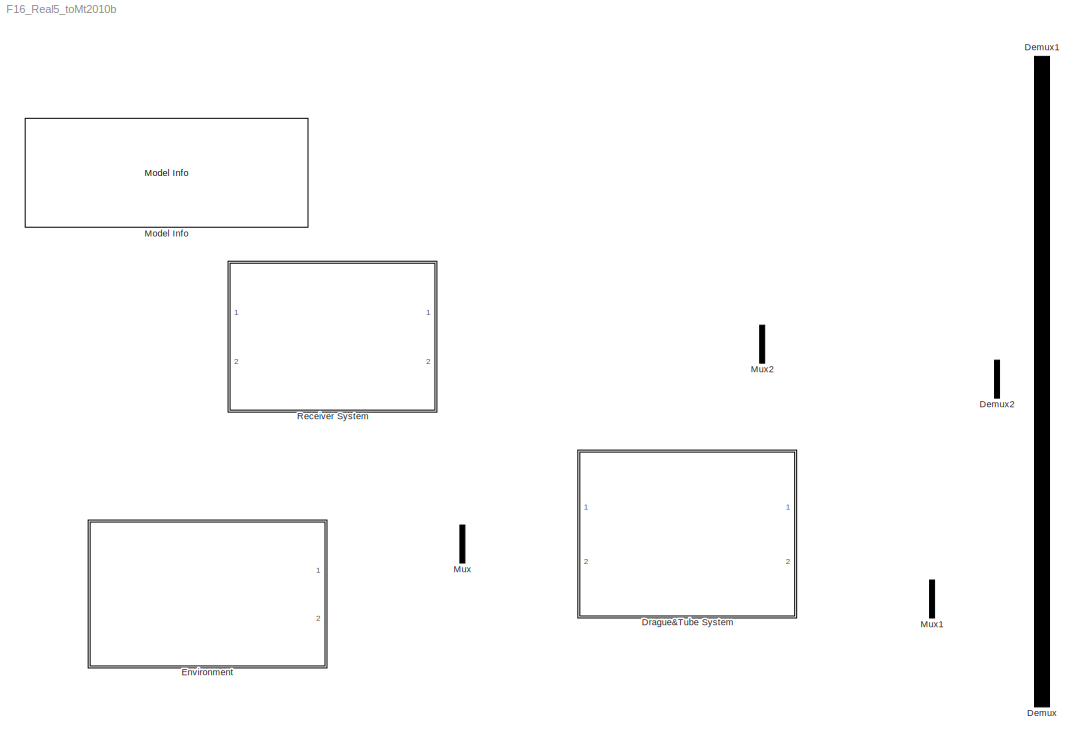
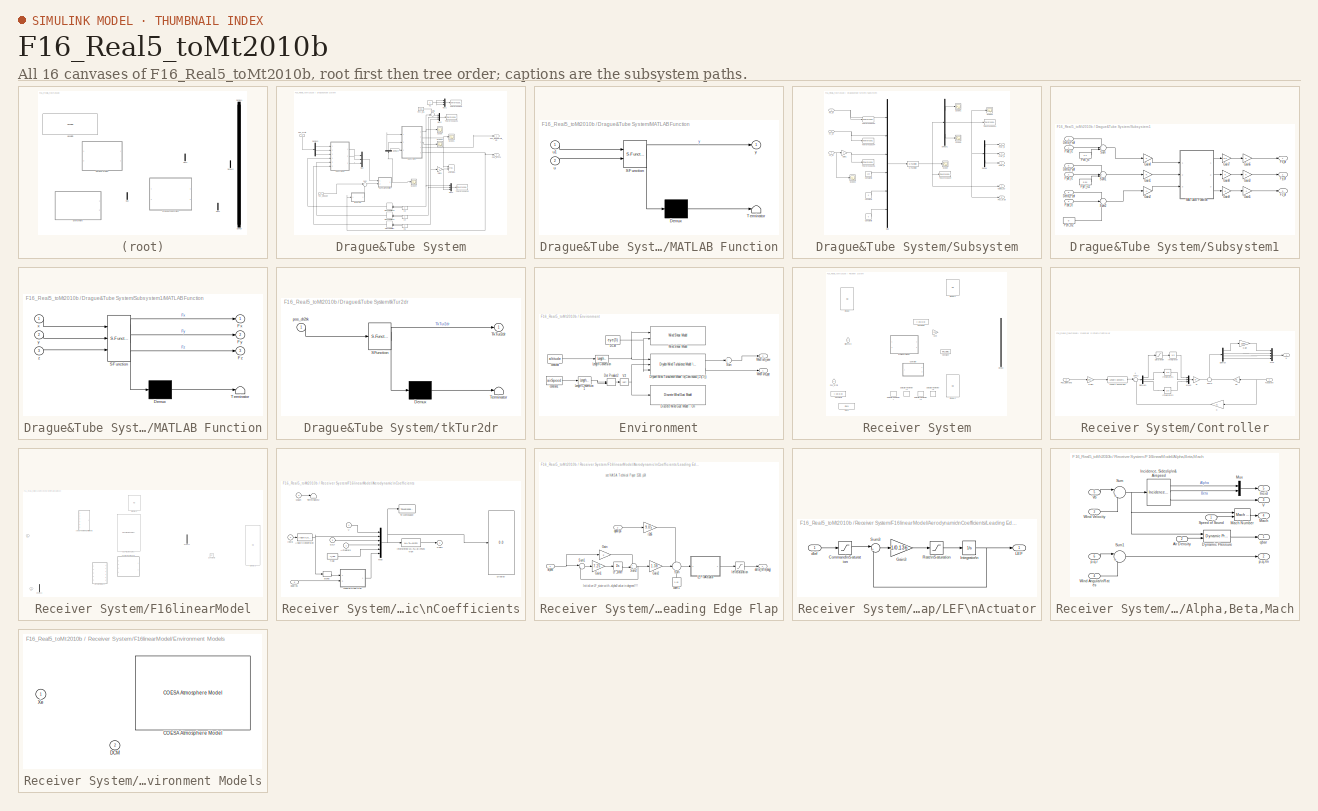
[diagram: thumbnail index - all 16 canvases of the model, root first then tree order]
MODEL F16_Real5_toMt2010b
KIND model
BLOCK [Demux] Demux
  DisplayOption = bar
  Outputs = 22
  Ports = [1, 22]
  SID = 1067
BLOCK [Demux] Demux1
  DisplayOption = bar
  Outputs = 22
  Ports = [1, 22]
  SID = 1068
BLOCK [Demux] Demux2
  DisplayOption = bar
  Outputs = [88,66]
  Ports = [1, 2]
  SID = 1069
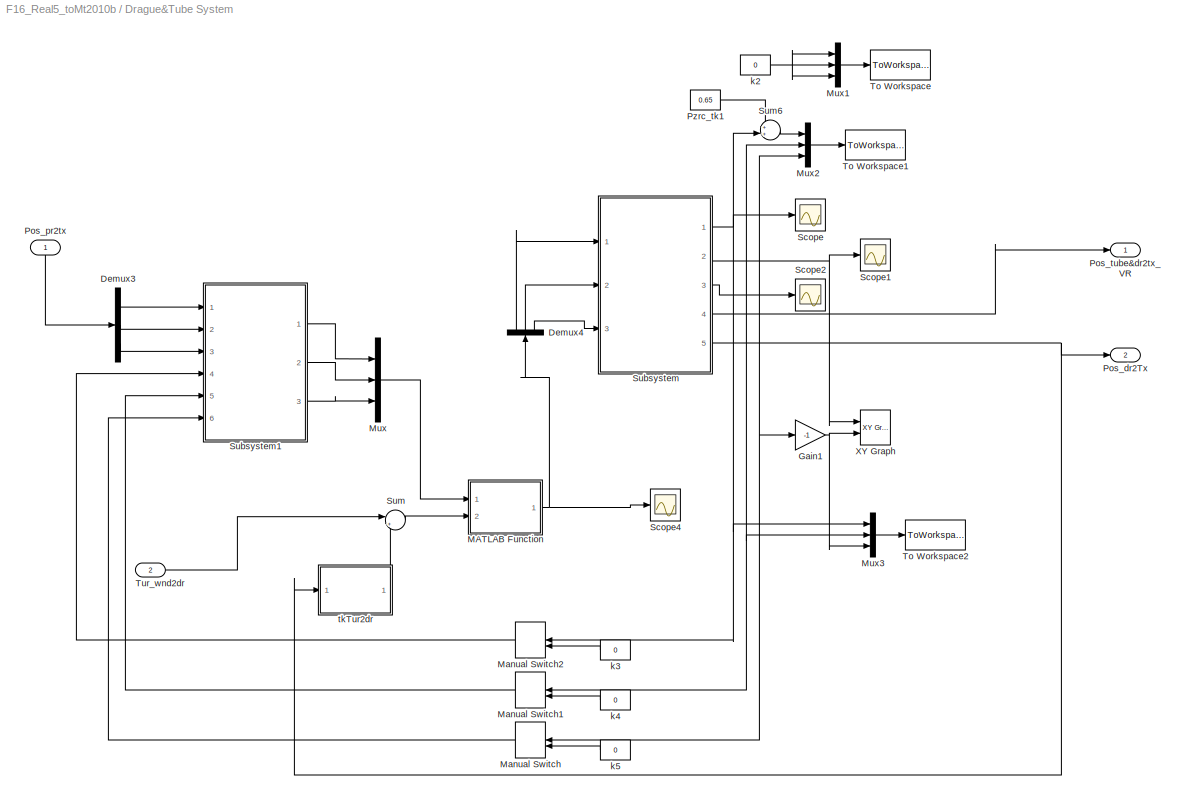
BLOCK [SubSystem] Drague&Tube System
  FunctionWithSeparateData = off
  MaskHideContents = off
  MinAlgLoopOccurrences = off
  Opaque = off
  Ports = [2, 2]
  PropExecContextOutsideSubsystem = off
  RTWSystemCode = Auto
  RequestExecContextInheritance = off
  SID = 194
BLOCK [Demux] Drague&Tube System/Demux3
  DisplayOption = bar
  Outputs = 3
  Ports = [1, 3]
  SID = 189
BLOCK [Demux] Drague&Tube System/Demux4
  DisplayOption = bar
  Outputs = 3
  Ports = [1, 3]
  SID = 193
BLOCK [Gain] Drague&Tube System/Gain1
  Gain = -1
  OutDataTypeStr = Inherit: Inherit via internal rule
  ParamDataTypeStr = Inherit: Inherit via internal rule
  SID = 64
  SaturateOnIntegerOverflow = off
BLOCK [SubSystem] Drague&Tube System/MATLAB Function
  ErrorFcn = Stateflow.Translate.translate
  FunctionWithSeparateData = off
  MaskHideContents = off
  MinAlgLoopOccurrences = off
  Opaque = off
  PermitHierarchicalResolution = ExplicitOnly
  Ports = [2, 1]
  PropExecContextOutsideSubsystem = off
  RTWSystemCode = Auto
  RequestExecContextInheritance = off
  SFBlockType = MATLAB Function
  SID = 209
  TreatAsAtomicUnit = on
BLOCK [Demux] Drague&Tube System/MATLAB Function/ Demux 
  Outputs = 1
  Ports = [1, 1]
  SID = 209::19
BLOCK [S-Function] Drague&Tube System/MATLAB Function/ SFunction 
  EnableBusSupport = on
  FunctionName = sf_sfun
  PortCounts = [2 2]
  Ports = [2, 2]
  SID = 209::18
  Tag = Stateflow S-Function F16_Real5_toMt2010b 4
BLOCK [Terminator] Drague&Tube System/MATLAB Function/ Terminator 
  SID = 209::20
BLOCK [Inport] Drague&Tube System/MATLAB Function/u
  IconDisplay = Port number
  Port = 2
  SID = 209::1
BLOCK [Inport] Drague&Tube System/MATLAB Function/u1
  IconDisplay = Port number
  SID = 209::23
BLOCK [Outport] Drague&Tube System/MATLAB Function/y
  IconDisplay = Port number
  SID = 209::5
BLOCK [ManualSwitch] Drague&Tube System/Manual Switch
  SID = 104
BLOCK [ManualSwitch] Drague&Tube System/Manual Switch1
  SID = 105
BLOCK [ManualSwitch] Drague&Tube System/Manual Switch2
  SID = 106
BLOCK [Mux] Drague&Tube System/Mux
  DisplayOption = bar
  Inputs = 3
  Ports = [3, 1]
  SID = 566
BLOCK [Mux] Drague&Tube System/Mux1
  DisplayOption = bar
  Inputs = 3
  Ports = [3, 1]
  SID = 92
BLOCK [Mux] Drague&Tube System/Mux2
  DisplayOption = bar
  Inputs = 3
  Ports = [3, 1]
  SID = 96
BLOCK [Mux] Drague&Tube System/Mux3
  DisplayOption = bar
  Inputs = 3
  Ports = [3, 1]
  SID = 122
BLOCK [Outport] Drague&Tube System/Pos_dr2Tx
  IconDisplay = Port number
  Port = 2
  SID = 198
BLOCK [Inport] Drague&Tube System/Pos_pr2tx
  IconDisplay = Port number
  SID = 195
BLOCK [Outport] Drague&Tube System/Pos_tube&dr2tx_VR
  IconDisplay = Port number
  SID = 197
BLOCK [Constant] Drague&Tube System/Pzrc_tk1
  SID = 100
  Value = 0.65
BLOCK [Scope] Drague&Tube System/Scope
  DataFormat = StructureWithTime
  Floating = off
  NumInputPorts = 1
  Ports = [1]
  SID = 33
  SampleTime = 0
  ShowLegends = off
  YMax = -13.295
  YMin = -13.32
BLOCK [Scope] Drague&Tube System/Scope1
  DataFormat = StructureWithTime
  Floating = off
  NumInputPorts = 1
  Ports = [1]
  SID = 34
  SampleTime = 0
  SaveName = ScopeData1
  ShowLegends = off
  YMax = 1
  YMin = -1
BLOCK [Scope] Drague&Tube System/Scope2
  DataFormat = StructureWithTime
  Floating = off
  NumInputPorts = 1
  Ports = [1]
  SID = 35
  SampleTime = 0
  SaveName = ScopeData2
  ShowLegends = off
  YMax = 5.22
  YMin = 5.155
BLOCK [Scope] Drague&Tube System/Scope4
  DataFormat = StructureWithTime
  Floating = off
  NumInputPorts = 1
  Ports = [1]
  SID = 1049
  SampleTime = 0
  SaveName = ScopeData22
  ShowLegends = off
  YMax = 47.5
  YMin = -2.5
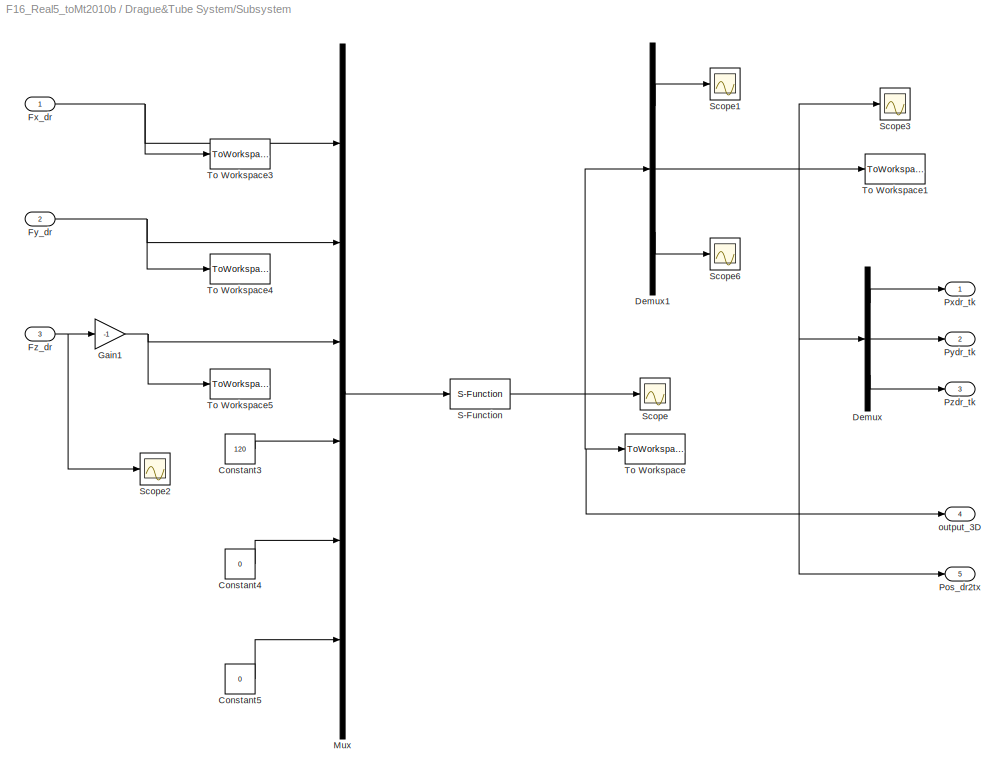
BLOCK [SubSystem] Drague&Tube System/Subsystem
  FunctionWithSeparateData = off
  MaskHideContents = off
  MinAlgLoopOccurrences = off
  Opaque = off
  Ports = [3, 5]
  PropExecContextOutsideSubsystem = off
  RTWSystemCode = Auto
  RequestExecContextInheritance = off
  SID = 3
BLOCK [Constant] Drague&Tube System/Subsystem/Constant3
  SID = 129
  Value = 120
BLOCK [Constant] Drague&Tube System/Subsystem/Constant4
  SID = 130
  Value = 0
BLOCK [Constant] Drague&Tube System/Subsystem/Constant5
  SID = 131
  Value = 0
BLOCK [Demux] Drague&Tube System/Subsystem/Demux
  DisplayOption = bar
  Outputs = 3
  Ports = [1, 3]
  SID = 145
BLOCK [Demux] Drague&Tube System/Subsystem/Demux1
  DisplayOption = bar
  Outputs = [57,3,40]
  Ports = [1, 3]
  SID = 147
BLOCK [Inport] Drague&Tube System/Subsystem/Fx_dr
  IconDisplay = Port number
  SID = 4
BLOCK [Inport] Drague&Tube System/Subsystem/Fy_dr
  IconDisplay = Port number
  Port = 2
  SID = 11
BLOCK [Inport] Drague&Tube System/Subsystem/Fz_dr
  IconDisplay = Port number
  Port = 3
  SID = 12
BLOCK [Gain] Drague&Tube System/Subsystem/Gain1
  Gain = -1
  OutDataTypeStr = double
  ParamDataTypeStr = double
  SID = 170
  SaturateOnIntegerOverflow = off
BLOCK [Mux] Drague&Tube System/Subsystem/Mux
  DisplayOption = bar
  Inputs = 6
  Ports = [6, 1]
  SID = 132
BLOCK [Outport] Drague&Tube System/Subsystem/Pos_dr2tx
  IconDisplay = Port number
  Port = 5
  SID = 190
BLOCK [Outport] Drague&Tube System/Subsystem/Pxdr_tk
  IconDisplay = Port number
  SID = 5
BLOCK [Outport] Drague&Tube System/Subsystem/Pydr_tk
  IconDisplay = Port number
  Port = 2
  SID = 15
BLOCK [Outport] Drague&Tube System/Subsystem/Pzdr_tk
  IconDisplay = Port number
  Port = 3
  SID = 16
BLOCK [S-Function] Drague&Tube System/Subsystem/S-Function
  EnableBusSupport = off
  FunctionName = hose3D_n_air_Fv_correction
  Ports = [1, 1]
  SID = 133
BLOCK [Scope] Drague&Tube System/Subsystem/Scope
  DataFormat = StructureWithTime
  Floating = off
  NumInputPorts = 1
  Ports = [1]
  SID = 135
  SampleTime = 0
  SaveName = ScopeData4
  ShowLegends = off
  YMax = 1
  YMin = -14
  ZoomMode = yonly
BLOCK [Scope] Drague&Tube System/Subsystem/Scope1
  DataFormat = StructureWithTime
  Floating = off
  NumInputPorts = 1
  Ports = [1]
  SID = 148
  SampleTime = 0
  SaveName = ScopeData3
  ShowLegends = off
  YMax = 1
  YMin = -14
  ZoomMode = yonly
BLOCK [Scope] Drague&Tube System/Subsystem/Scope2
  DataFormat = StructureWithTime
  Floating = off
  NumInputPorts = 1
  Ports = [1]
  SID = 539
  SampleTime = 0
  SaveName = ScopeData8
  ShowLegends = off
  YMax = 0
  YMin = -65
BLOCK [Scope] Drague&Tube System/Subsystem/Scope3
  DataFormat = StructureWithTime
  Floating = off
  NumInputPorts = 1
  Ports = [1]
  SID = 154
  SampleTime = 0
  SaveName = ScopeData6
  ShowLegends = off
  YMax = 1350
  YMin = 1025
  ZoomMode = yonly
BLOCK [Scope] Drague&Tube System/Subsystem/Scope6
  DataFormat = StructureWithTime
  Floating = off
  NumInputPorts = 1
  Ports = [1]
  SID = 152
  SampleTime = 0
  SaveName = ScopeData9
  ShowLegends = off
  YMax = 1
  YMin = -14
  ZoomMode = yonly
BLOCK [ToWorkspace] Drague&Tube System/Subsystem/To Workspace
  MaxDataPoints = inf
  Ports = [1]
  SID = 140
  SampleTime = -1
  VariableName = output_3D
BLOCK [ToWorkspace] Drague&Tube System/Subsystem/To Workspace1
  MaxDataPoints = inf
  Ports = [1]
  SID = 153
  SampleTime = -1
  VariableName = output_dr1
BLOCK [ToWorkspace] Drague&Tube System/Subsystem/To Workspace3
  MaxDataPoints = inf
  Ports = [1]
  SID = 142
  SampleTime = -1
  VariableName = input_x
BLOCK [ToWorkspace] Drague&Tube System/Subsystem/To Workspace4
  MaxDataPoints = inf
  Ports = [1]
  SID = 143
  SampleTime = -1
  VariableName = input_y
BLOCK [ToWorkspace] Drague&Tube System/Subsystem/To Workspace5
  MaxDataPoints = inf
  Ports = [1]
  SID = 144
  SampleTime = -1
  VariableName = input_z
BLOCK [Outport] Drague&Tube System/Subsystem/output_3D
  IconDisplay = Port number
  Port = 4
  SID = 175
BLOCK [SubSystem] Drague&Tube System/Subsystem1
  FunctionWithSeparateData = off
  MaskHideContents = off
  MinAlgLoopOccurrences = off
  Opaque = off
  Ports = [6, 3]
  PropExecContextOutsideSubsystem = off
  RTWSystemCode = Auto
  RequestExecContextInheritance = off
  SID = 1021
BLOCK [Inport] Drague&Tube System/Subsystem1/Delta_Pxdr
  IconDisplay = Port number
  Port = 4
  SID = 1025
BLOCK [Inport] Drague&Tube System/Subsystem1/Delta_Pydr
  IconDisplay = Port number
  Port = 5
  SID = 1026
BLOCK [Inport] Drague&Tube System/Subsystem1/Delta_Pzdr
  IconDisplay = Port number
  Port = 6
  SID = 1027
BLOCK [Outport] Drague&Tube System/Subsystem1/Fx_dr
  IconDisplay = Port number
  SID = 1044
BLOCK [Outport] Drague&Tube System/Subsystem1/Fy_dr
  IconDisplay = Port number
  Port = 2
  SID = 1045
BLOCK [Outport] Drague&Tube System/Subsystem1/Fz_dr
  IconDisplay = Port number
  Port = 3
  SID = 1046
BLOCK [Gain] Drague&Tube System/Subsystem1/Gain1
  OutDataTypeStr = Inherit: Inherit via internal rule
  ParamDataTypeStr = Inherit: Inherit via internal rule
  SID = 1028
  SaturateOnIntegerOverflow = off
BLOCK [Gain] Drague&Tube System/Subsystem1/Gain2
  Gain = -1
  OutDataTypeStr = Inherit: Inherit via internal rule
  ParamDataTypeStr = Inherit: Inherit via internal rule
  SID = 1029
  SaturateOnIntegerOverflow = off
BLOCK [Gain] Drague&Tube System/Subsystem1/Gain3
  OutDataTypeStr = Inherit: Inherit via internal rule
  ParamDataTypeStr = Inherit: Inherit via internal rule
  SID = 1030
  SaturateOnIntegerOverflow = off
BLOCK [Gain] Drague&Tube System/Subsystem1/Gain4
  OutDataTypeStr = Inherit: Inherit via internal rule
  ParamDataTypeStr = Inherit: Inherit via internal rule
  SID = 1031
  SaturateOnIntegerOverflow = off
BLOCK [Gain] Drague&Tube System/Subsystem1/Gain5
  Gain = -1
  OutDataTypeStr = Inherit: Inherit via internal rule
  ParamDataTypeStr = Inherit: Inherit via internal rule
  SID = 1032
  SaturateOnIntegerOverflow = off
BLOCK [Gain] Drague&Tube System/Subsystem1/Gain6
  OutDataTypeStr = Inherit: Inherit via internal rule
  ParamDataTypeStr = Inherit: Inherit via internal rule
  SID = 1033
  SaturateOnIntegerOverflow = off
BLOCK [Gain] Drague&Tube System/Subsystem1/Gain7
  Gain = 0.5
  OutDataTypeStr = Inherit: Inherit via internal rule
  ParamDataTypeStr = Inherit: Inherit via internal rule
  SID = 1034
  SaturateOnIntegerOverflow = off
BLOCK [Gain] Drague&Tube System/Subsystem1/Gain8
  OutDataTypeStr = Inherit: Inherit via internal rule
  ParamDataTypeStr = Inherit: Inherit via internal rule
  SID = 1035
  SaturateOnIntegerOverflow = off
BLOCK [Gain] Drague&Tube System/Subsystem1/Gain9
  OutDataTypeStr = Inherit: Inherit via internal rule
  ParamDataTypeStr = Inherit: Inherit via internal rule
  SID = 1036
  SaturateOnIntegerOverflow = off
BLOCK [SubSystem] Drague&Tube System/Subsystem1/MATLAB Function
  ErrorFcn = Stateflow.Translate.translate
  FunctionWithSeparateData = off
  MaskHideContents = off
  MinAlgLoopOccurrences = off
  Opaque = off
  PermitHierarchicalResolution = ExplicitOnly
  Ports = [3, 3]
  PropExecContextOutsideSubsystem = off
  RTWSystemCode = Auto
  RequestExecContextInheritance = off
  SFBlockType = MATLAB Function
  SID = 1037
  TreatAsAtomicUnit = on
BLOCK [Demux] Drague&Tube System/Subsystem1/MATLAB Function/ Demux 
  Outputs = 1
  Ports = [1, 1]
  SID = 1037::19
BLOCK [S-Function] Drague&Tube System/Subsystem1/MATLAB Function/ SFunction 
  EnableBusSupport = on
  FunctionName = sf_sfun
  PortCounts = [3 4]
  Ports = [3, 4]
  SID = 1037::18
  Tag = Stateflow S-Function F16_Real5_toMt2010b 2
BLOCK [Terminator] Drague&Tube System/Subsystem1/MATLAB Function/ Terminator 
  SID = 1037::20
BLOCK [Outport] Drague&Tube System/Subsystem1/MATLAB Function/Fx
  IconDisplay = Port number
  SID = 1037::5
BLOCK [Outport] Drague&Tube System/Subsystem1/MATLAB Function/Fy
  IconDisplay = Port number
  Port = 2
  SID = 1037::23
BLOCK [Outport] Drague&Tube System/Subsystem1/MATLAB Function/Fz
  IconDisplay = Port number
  Port = 3
  SID = 1037::24
BLOCK [Inport] Drague&Tube System/Subsystem1/MATLAB Function/x
  IconDisplay = Port number
  SID = 1037::1
BLOCK [Inport] Drague&Tube System/Subsystem1/MATLAB Function/y
  IconDisplay = Port number
  Port = 2
  SID = 1037::21
BLOCK [Inport] Drague&Tube System/Subsystem1/MATLAB Function/z
  IconDisplay = Port number
  Port = 3
  SID = 1037::22
BLOCK [Inport] Drague&Tube System/Subsystem1/Pxdr_rc
  IconDisplay = Port number
  SID = 1022
BLOCK [Constant] Drague&Tube System/Subsystem1/Pxfl_rc
  SID = 1038
  Value = 2.2
BLOCK [Inport] Drague&Tube System/Subsystem1/Pydr_rc
  IconDisplay = Port number
  Port = 2
  SID = 1023
BLOCK [Constant] Drague&Tube System/Subsystem1/Pyfl_rc1
  SID = 1039
  Value = 0.54
BLOCK [Inport] Drague&Tube System/Subsystem1/Pzdr_rc
  IconDisplay = Port number
  Port = 3
  SID = 1024
BLOCK [Constant] Drague&Tube System/Subsystem1/Pzfl_rc2
  SID = 1040
  Value = 0
BLOCK [Sum] Drague&Tube System/Subsystem1/Sum
  IconShape = round
  InputSameDT = off
  Inputs = +-+
  OutDataTypeStr = Inherit: Inherit via internal rule
  Ports = [3, 1]
  SID = 1041
  SaturateOnIntegerOverflow = off
BLOCK [Sum] Drague&Tube System/Subsystem1/Sum1
  IconShape = round
  InputSameDT = off
  Inputs = -++
  OutDataTypeStr = Inherit: Inherit via internal rule
  Ports = [3, 1]
  SID = 1042
  SaturateOnIntegerOverflow = off
BLOCK [Sum] Drague&Tube System/Subsystem1/Sum2
  IconShape = round
  InputSameDT = off
  Inputs = +--
  OutDataTypeStr = Inherit: Inherit via internal rule
  Ports = [3, 1]
  SID = 1043
  SaturateOnIntegerOverflow = off
BLOCK [Sum] Drague&Tube System/Sum
  IconShape = round
  InputSameDT = off
  Inputs = |++
  OutDataTypeStr = Inherit: Inherit via internal rule
  Ports = [2, 1]
  SID = 567
  SaturateOnIntegerOverflow = off
BLOCK [Sum] Drague&Tube System/Sum6
  IconShape = round
  InputSameDT = off
  Inputs = ++|
  OutDataTypeStr = Inherit: Inherit via internal rule
  Ports = [2, 1]
  SID = 99
  SaturateOnIntegerOverflow = off
BLOCK [ToWorkspace] Drague&Tube System/To Workspace
  MaxDataPoints = inf
  Ports = [1]
  SID = 95
  SampleTime = -1
  VariableName = alt
BLOCK [ToWorkspace] Drague&Tube System/To Workspace1
  MaxDataPoints = inf
  Ports = [1]
  SID = 97
  SampleTime = -1
  VariableName = pos_Tg
BLOCK [ToWorkspace] Drague&Tube System/To Workspace2
  MaxDataPoints = inf
  Ports = [1]
  SID = 123
  SampleTime = -1
  VariableName = pos_dr
BLOCK [Inport] Drague&Tube System/Tur_wnd2dr
  IconDisplay = Port number
  Port = 2
  SID = 196
  SignalType = real
BLOCK [Reference] Drague&Tube System/XY Graph  REF=simulink/Sinks/XY Graph
  Ports = [2]
  SID = 63
  SourceBlock = simulink/Sinks/XY Graph
  SourceType = XY scope.
  st = -1
  xmax = 1
  xmin = -1
  ymax = 1-4.65
  ymin = -1-4.65
BLOCK [Constant] Drague&Tube System/k2
  SID = 94
  Value = 0
BLOCK [Constant] Drague&Tube System/k3
  SID = 107
  Value = 0
BLOCK [Constant] Drague&Tube System/k4
  SID = 108
  Value = 0
BLOCK [Constant] Drague&Tube System/k5
  SID = 109
  Value = 0
BLOCK [SubSystem] Drague&Tube System/tkTur2dr
  ErrorFcn = Stateflow.Translate.translate
  FunctionWithSeparateData = off
  MaskHideContents = off
  MinAlgLoopOccurrences = off
  Opaque = off
  PermitHierarchicalResolution = ExplicitOnly
  Ports = [1, 1]
  PropExecContextOutsideSubsystem = off
  RTWSystemCode = Auto
  RequestExecContextInheritance = off
  SFBlockType = MATLAB Function
  SID = 570
  TreatAsAtomicUnit = on
BLOCK [Demux] Drague&Tube System/tkTur2dr/ Demux 
  Outputs = 1
  Ports = [1, 1]
  SID = 570::19
BLOCK [S-Function] Drague&Tube System/tkTur2dr/ SFunction 
  EnableBusSupport = on
  FunctionName = sf_sfun
  PortCounts = [1 2]
  Ports = [1, 2]
  SID = 570::18
  Tag = Stateflow S-Function F16_Real5_toMt2010b 6
BLOCK [Terminator] Drague&Tube System/tkTur2dr/ Terminator 
  SID = 570::20
BLOCK [Outport] Drague&Tube System/tkTur2dr/TkTur2dr
  IconDisplay = Port number
  SID = 570::5
BLOCK [Inport] Drague&Tube System/tkTur2dr/pos_dr2tk
  IconDisplay = Port number
  SID = 570::1
BLOCK [SubSystem] Environment
  FunctionWithSeparateData = off
  MaskHideContents = off
  MinAlgLoopOccurrences = off
  Opaque = off
  Ports = [0, 2]
  PropExecContextOutsideSubsystem = off
  RTWSystemCode = Auto
  RequestExecContextInheritance = off
  SID = 398
BLOCK [Constant] Environment/DCM
  SID = 219
  Value = eye(3)
BLOCK [Reference] Environment/Discrete Wind Gust Model - On  REF=aerolibwind2/Discrete Wind Gust Model
  Gx = on
  Gy = on
  Gz = on
  Ports = [1, 1]
  SID = 970
  SourceBlock = aerolibwind2/Discrete Wind Gust Model
  SourceType = Discrete Wind Gust Model
  d_m = [120 120 80]
  t_0 = 20
  units = Metric (MKS)
  v_m = [0 0 0]
BLOCK [DotProduct] Environment/Dot Product2
  InputSameDT = off
  OutDataTypeStr = Inherit: Inherit via internal rule
  SID = 983
  SaturateOnIntegerOverflow = on
BLOCK [Reference] Environment/Dryden Wind Turbulence Model \n(Continuous (+q -r))  REF=aerolibwind2/Dryden Wind Turbulence Model \n(Continuous (+q -r))
  L_high = 533.5
  Ports = [3, 2]
  SID = 971
  Seed = 1+fix(3650*rand(1,4))
  SourceBlock = aerolibwind2/Dryden Wind Turbulence Model \n(Continuous (+q -r))
  SourceType = Wind Turbulence Model
  T_on = on
  TurbProb = 2x10^-1
  W20 = 5
  Wdeg = 0
  Wingspan = 6
  model = Continuous Dryden (+q -r)
  spec = MIL-F-8785C
  ts = 0.01
  units = Metric (MKS)
BLOCK [Reference] Environment/Length Conversion  REF=aerolibconvert2/Length Conversion
  IU = ft
  OU = m
  Ports = [1, 1]
  SID = 985
  SourceBlock = aerolibconvert2/Length Conversion
  SourceType = Length Conversion
BLOCK [Reference] Environment/Length Conversion1  REF=aerolibconvert2/Length Conversion
  IU = ft
  OU = m
  Ports = [1, 1]
  SID = 986
  SourceBlock = aerolibconvert2/Length Conversion
  SourceType = Length Conversion
BLOCK [Sum] Environment/Sum
  IconShape = round
  Inputs = +++
  Ports = [3, 1]
  SID = 972
BLOCK [Math] Environment/V2
  Operator = sqrt
  Ports = [1, 1]
  SID = 984
BLOCK [Reference] Environment/Wind Shear Model  REF=aerolibwind2/Wind Shear Model
  Ports = [2, 1]
  SID = 973
  SourceBlock = aerolibwind2/Wind Shear Model
  SourceType = Wind Shear Model
  W_20 = 1
  Wdeg = 0
  phase = Category C - Terminal Flight Phase
  units = Metric (MKS)
BLOCK [Outport] Environment/WndTurb_pqr
  IconDisplay = Port number
  SID = 399
BLOCK [Outport] Environment/WndTurb_uvw
  IconDisplay = Port number
  Port = 2
  SID = 400
BLOCK [Constant] Environment/constan1
  SID = 982
  Value = airSpeed
BLOCK [Constant] Environment/constant
  SID = 218
  Value = altitude
BLOCK [Reference] Model Info  REF=simulink/Model-Wide\nUtilities/Model Info
  BlockCM = None
  DisplayStringWithTags = Ppr_rc=[6.06 0.54 -0.86]\nPns_rc=[8.00 0.00  0.00]\nPfl_rc=[3.75 0.00 -0.86]\nPdr0_tk=[-13.549 0.00 5]
  Frame = on
  HorizontalTextAlignment = Center
  InitialBlockCM = None
  LeftAlignmentValue = 0.5
  MaskDisplayString = Ppr_rc=[6.06 0.54 -0.86]\\nPns_rc=[8.00 0.00  0.00]\\nPfl_rc=[3.75 0.00 -0.86]\\nPdr0_tk=[-13.549 0.00 5]
  Ports = []
  SID = 29
  SourceBlock = simulink/Model-Wide\nUtilities/Model Info
  SourceBlockDiagram = F16_Real5
  SourceType = CMBlock
  TagMaxNumber = 20
BLOCK [Mux] Mux
  DisplayOption = bar
  Inputs = 2
  Ports = [2, 1]
  SID = 281
BLOCK [Mux] Mux1
  DisplayOption = bar
  Inputs = 2
  Ports = [2, 1]
  SID = 558
BLOCK [Mux] Mux2
  DisplayOption = bar
  Inputs = 2
  Ports = [2, 1]
  SID = 563
BLOCK [SubSystem] Receiver System
  FunctionWithSeparateData = off
  MaskHideContents = off
  MinAlgLoopOccurrences = off
  Opaque = off
  Ports = [2, 2]
  PropExecContextOutsideSubsystem = off
  RTWSystemCode = Auto
  RequestExecContextInheritance = off
  SID = 225
BLOCK [Gain] Receiver System/C2m
  Gain = C2m
  Multiplication = Matrix(K*u) (u vector)
  OutDataTypeStr = Inherit: Inherit via internal rule
  ParamDataTypeStr = Inherit: Inherit via internal rule
  SID = 961
  SaturateOnIntegerOverflow = off
BLOCK [Clock] Receiver System/Clock
  Decimation = 50
  DisplayTime = on
  SID = 235
BLOCK [Constant] Receiver System/Constant
  SID = 236
  Value = trim_state1
BLOCK [Constant] Receiver System/Constant2
  SID = 552
  Value = [-20;0;0]
BLOCK [Constant] Receiver System/Constant3
  SID = 553
  Value = [-20;0;0]
BLOCK [SubSystem] Receiver System/Controller
  FunctionWithSeparateData = off
  MaskHideContents = off
  MinAlgLoopOccurrences = off
  Opaque = off
  Ports = [2, 1]
  PropExecContextOutsideSubsystem = off
  RTWSystemCode = Auto
  RequestExecContextInheritance = off
  SID = 518
BLOCK [Gain] Receiver System/Controller/C
  Gain = C
  Multiplication = Matrix(K*u) (u vector)
  OutDataTypeStr = Inherit: Inherit via internal rule
  ParamDataTypeStr = Inherit: Inherit via internal rule
  SID = 521
  SaturateOnIntegerOverflow = off
BLOCK [Demux] Receiver System/Controller/Demux
  DisplayOption = bar
  Ports = [1, 4]
  SID = 957
BLOCK [Demux] Receiver System/Controller/Demux1
  DisplayOption = bar
  Outputs = 3
  Ports = [1, 3]
  SID = 522
BLOCK [Inport] Receiver System/Controller/F16State
  IconDisplay = Port number
  SID = 519
BLOCK [Gain] Receiver System/Controller/Gain
  Gain = 1000
  OutDataTypeStr = Inherit: Inherit via internal rule
  ParamDataTypeStr = Inherit: Inherit via internal rule
  SID = 958
  SaturateOnIntegerOverflow = off
BLOCK [Gain] Receiver System/Controller/Gain1
  Gain = [1,0,0;0,0,-1;0,1,0]
  Multiplication = Matrix(K*u) (u vector)
  OutDataTypeStr = Inherit: Inherit via internal rule
  ParamDataTypeStr = Inherit: Inherit via internal rule
  SID = 1064
  SaturateOnIntegerOverflow = off
BLOCK [Integrator] Receiver System/Controller/Integrator
  Ports = [1, 1]
  SID = 609
BLOCK [Integrator] Receiver System/Controller/Integrator1
  Ports = [1, 1]
  SID = 610
BLOCK [Integrator] Receiver System/Controller/Integrator2
  Ports = [1, 1]
  SID = 611
BLOCK [Gain] Receiver System/Controller/Ki
  Gain = Ki
  Multiplication = Matrix(K*u) (u vector)
  OutDataTypeStr = Inherit: Inherit via internal rule
  ParamDataTypeStr = Inherit: Inherit via internal rule
  SID = 523
  SaturateOnIntegerOverflow = off
BLOCK [Gain] Receiver System/Controller/Kp
  Gain = Kp
  Multiplication = Matrix(K*u) (u vector)
  OutDataTypeStr = Inherit: Inherit via internal rule
  ParamDataTypeStr = Inherit: Inherit via internal rule
  SID = 524
  SaturateOnIntegerOverflow = off
BLOCK [Reference] Receiver System/Controller/Length Conversion  REF=aerolibconvert2/Length Conversion
  IU = m
  OU = ft
  Ports = [1, 1]
  SID = 956
  SourceBlock = aerolibconvert2/Length Conversion
  SourceType = Length Conversion
BLOCK [Mux] Receiver System/Controller/Mux
  DisplayOption = bar
  Ports = [4, 1]
  SID = 959
BLOCK [Mux] Receiver System/Controller/Mux3
  DisplayOption = bar
  Inputs = 3
  Ports = [3, 1]
  SID = 525
BLOCK [Inport] Receiver System/Controller/Pos_Demand
  IconDisplay = Port number
  Port = 2
  SID = 520
BLOCK [Saturate] Receiver System/Controller/Saturation
  InputPortMap = u0
  LowerLimit = -15
  Ports = [1, 1]
  SID = 529
  UpperLimit = 15
BLOCK [Sum] Receiver System/Controller/Sum2
  IconShape = round
  InputSameDT = off
  Inputs = |+-
  OutDataTypeStr = Inherit: Inherit via internal rule
  Ports = [2, 1]
  SID = 531
  SaturateOnIntegerOverflow = off
BLOCK [Sum] Receiver System/Controller/Sum3
  IconShape = round
  InputSameDT = off
  Inputs = +|-
  OutDataTypeStr = Inherit: Inherit via internal rule
  Ports = [2, 1]
  SID = 612
  SaturateOnIntegerOverflow = off
BLOCK [Outport] Receiver System/Controller/U
  IconDisplay = Port number
  SID = 960
BLOCK [DataStoreMemory] Receiver System/Data Store\nMemory
  DataStoreName = aa
  InitialValue = [0;0;0]
  OutDataTypeStr = double
  SID = 995
  SignalType = real
BLOCK [DataStoreMemory] Receiver System/Data Store\nMemory1
  DataStoreName = tt
  Dimensions = 1
  OutDataTypeStr = double
  SID = 1054
  SignalType = real
BLOCK [DataStoreMemory] Receiver System/Data Store\nMemory2
  DataStoreName = mm
  InitialValue = [0;0.3;-0.3]
  OutDataTypeStr = double
  SID = 1056
  SignalType = real
BLOCK [DataStoreMemory] Receiver System/Data Store\nMemory3
  DataStoreName = nn
  InitialValue = [0.2,0.1,-0.1]
  OutDataTypeStr = double
  SID = 1065
  SignalType = real
BLOCK [Demux] Receiver System/Demux
  Outputs = 18
  Ports = [1, 18]
  SID = 595
BLOCK [Display] Receiver System/Display
  Decimation = 1
  Lockdown = off
  Ports = [1]
  SID = 1058
BLOCK [Display] Receiver System/Display1
  Decimation = 1
  Lockdown = off
  Ports = [1]
  SID = 1059
BLOCK [Display] Receiver System/Display2
  Decimation = 1
  Lockdown = off
  Ports = [1]
  SID = 1063
BLOCK [SubSystem] Receiver System/F16linearModel
  FunctionWithSeparateData = off
  MaskHideContents = off
  MinAlgLoopOccurrences = off
  Opaque = off
  Ports = [2, 2]
  PropExecContextOutsideSubsystem = off
  RTWSystemCode = Auto
  RequestExecContextInheritance = off
  SID = 505
BLOCK [Reference] Receiver System/F16linearModel/6DoF (Euler Angles)  REF=aerolib6dof2/6DoF (Euler Angles)
  Ports = [2, 8]
  SID = 792
  SourceBlock = aerolib6dof2/6DoF (Euler Angles)
  SourceType = 6DoF EoM (Body Axis)
  Vm_0 = Vmw
  eul_0 = Euler_0
  inertia = Inertia
  inertia_e = eye(3)
  inertia_f = 2*eye(3)
  k_quat = 1.0
  mass_0 = mass
  mass_e = 0.5
  mass_f = 2.0
  mtype = Fixed
  pm_0 = pm_0
  rep = Euler Angles
  units = English (Velocity in ft/s)
  xme_0 = xme_0
BLOCK [SubSystem] Receiver System/F16linearModel/Aerodynamic\nCoefficients
  FunctionWithSeparateData = off
  MaskHideContents = off
  MinAlgLoopOccurrences = off
  Opaque = off
  Ports = [6, 1]
  PropExecContextOutsideSubsystem = off
  RTWSystemCode = Auto
  RequestExecContextInheritance = off
  SID = 793
BLOCK [Inport] Receiver System/F16linearModel/Aerodynamic\nCoefficients/Actuators
  IconDisplay = Port number
  SID = 794
BLOCK [Reference] Receiver System/F16linearModel/Aerodynamic\nCoefficients/Angle Conversion  REF=aerolibconvert2/Angle Conversion
  IU = rad
  OU = deg
  Ports = [1, 1]
  SID = 800
  SourceBlock = aerolibconvert2/Angle Conversion
  SourceType = Angle Conversion
BLOCK [Outport] Receiver System/F16linearModel/Aerodynamic\nCoefficients/Coeff
  IconDisplay = Port number
  InitialOutput = 0
  SID = 833
BLOCK [Display] Receiver System/F16linearModel/Aerodynamic\nCoefficients/Display
  Decimation = 12
  Lockdown = off
  Ports = [1]
  SID = 802
BLOCK [Inport] Receiver System/F16linearModel/Aerodynamic\nCoefficients/Incid
  IconDisplay = Port number
  Port = 2
  SID = 795
BLOCK [MATLABFcn] Receiver System/F16linearModel/Aerodynamic\nCoefficients/Interpreted MATLAB\nFunction
  MATLABFcn = F16Coef1
  OutputDimensions = 6
  Ports = [1, 1]
  SID = 803
BLOCK [SubSystem] Receiver System/F16linearModel/Aerodynamic\nCoefficients/Leading Edge Flap
  FunctionWithSeparateData = off
  MaskHideContents = off
  MinAlgLoopOccurrences = off
  Opaque = off
  Ports = [2, 1]
  PropExecContextOutsideSubsystem = off
  RTWSystemCode = Auto
  RequestExecContextInheritance = off
  SID = 804
BLOCK [Gain] Receiver System/F16linearModel/Aerodynamic\nCoefficients/Leading Edge Flap/Gain
  Gain = 2
  SID = 807
BLOCK [Gain] Receiver System/F16linearModel/Aerodynamic\nCoefficients/Leading Edge Flap/Gain1
  Gain = 7.25
  SID = 808
BLOCK [Gain] Receiver System/F16linearModel/Aerodynamic\nCoefficients/Leading Edge Flap/Gain2
  Gain = 1.38
  SID = 809
BLOCK [SubSystem] Receiver System/F16linearModel/Aerodynamic\nCoefficients/Leading Edge Flap/LEF\nActuator
  FunctionWithSeparateData = off
  MaskHideContents = off
  MinAlgLoopOccurrences = off
  Opaque = off
  Ports = [1, 1]
  PropExecContextOutsideSubsystem = off
  RTWSystemCode = Auto
  RequestExecContextInheritance = off
  SID = 810
BLOCK [Saturate] Receiver System/F16linearModel/Aerodynamic\nCoefficients/Leading Edge Flap/LEF\nActuator/Command\nSaturation
  InputPortMap = u0
  LowerLimit = 0
  Ports = [1, 1]
  SID = 812
  UpperLimit = 25
BLOCK [Gain] Receiver System/F16linearModel/Aerodynamic\nCoefficients/Leading Edge Flap/LEF\nActuator/Gain3
  Gain = 1/0.136
  SID = 813
BLOCK [Integrator] Receiver System/F16linearModel/Aerodynamic\nCoefficients/Leading Edge Flap/LEF\nActuator/Integrator\n
  InitialCondition = dLEF
  LowerSaturationLimit = -21.5
  Ports = [1, 1]
  SID = 814
  UpperSaturationLimit = 21.5
BLOCK [Outport] Receiver System/F16linearModel/Aerodynamic\nCoefficients/Leading Edge Flap/LEF\nActuator/LEF
  IconDisplay = Port number
  SID = 817
BLOCK [Saturate] Receiver System/F16linearModel/Aerodynamic\nCoefficients/Leading Edge Flap/LEF\nActuator/Rate\nSaturation
  InputPortMap = u0
  LowerLimit = -25
  Ports = [1, 1]
  SID = 815
  UpperLimit = 25
BLOCK [Sum] Receiver System/F16linearModel/Aerodynamic\nCoefficients/Leading Edge Flap/LEF\nActuator/Sum3
  IconShape = round
  Inputs = |+-
  Ports = [2, 1]
  SID = 816
BLOCK [Inport] Receiver System/F16linearModel/Aerodynamic\nCoefficients/Leading Edge Flap/LEF\nActuator/dlef
  IconDisplay = Port number
  SID = 811
BLOCK [Integrator] Receiver System/F16linearModel/Aerodynamic\nCoefficients/Leading Edge Flap/LF_state
  InitialCondition = -alpha0
  Ports = [1, 1]
  SID = 818
BLOCK [Sum] Receiver System/F16linearModel/Aerodynamic\nCoefficients/Leading Edge Flap/Sum
  IconShape = round
  Inputs = -|+|+
  Ports = [3, 1]
  SID = 819
BLOCK [Sum] Receiver System/F16linearModel/Aerodynamic\nCoefficients/Leading Edge Flap/Sum1
  IconShape = round
  Inputs = |+-
  Ports = [2, 1]
  SID = 820
BLOCK [Sum] Receiver System/F16linearModel/Aerodynamic\nCoefficients/Leading Edge Flap/Sum2
  IconShape = round
  Inputs = ++|
  Ports = [2, 1]
  SID = 821
BLOCK [Inport] Receiver System/F16linearModel/Aerodynamic\nCoefficients/Leading Edge Flap/alpha
  IconDisplay = Port number
  SID = 805
BLOCK [Constant] Receiver System/F16linearModel/Aerodynamic\nCoefficients/Leading Edge Flap/coeff1
  SID = 822
  Value = 1.45
BLOCK [Outport] Receiver System/F16linearModel/Aerodynamic\nCoefficients/Leading Edge Flap/delta_lef\n(deg)
  IconDisplay = Port number
  SID = 825
BLOCK [Saturate] Receiver System/F16linearModel/Aerodynamic\nCoefficients/Leading Edge Flap/lef\nSaturation
  InputPortMap = u0
  LowerLimit = 0
  Ports = [1, 1]
  SID = 823
  UpperLimit = 25
BLOCK [Inport] Receiver System/F16linearModel/Aerodynamic\nCoefficients/Leading Edge Flap/qbar//ps
  IconDisplay = Port number
  Port = 2
  SID = 806
BLOCK [Gain] Receiver System/F16linearModel/Aerodynamic\nCoefficients/Leading Edge Flap/r2d6
  Gain = 9.05
  SID = 824
BLOCK [Inport] Receiver System/F16linearModel/Aerodynamic\nCoefficients/Mach
  IconDisplay = Port number
  Port = 3
  SID = 796
BLOCK [Mux] Receiver System/F16linearModel/Aerodynamic\nCoefficients/Mux
  DisplayOption = bar
  Inputs = 6
  Ports = [6, 1]
  SID = 828
BLOCK [Terminator] Receiver System/F16linearModel/Aerodynamic\nCoefficients/Terminator2
  SID = 829
BLOCK [ToWorkspace] Receiver System/F16linearModel/Aerodynamic\nCoefficients/To Workspace
  MaxDataPoints = inf
  Ports = [1]
  SID = 830
  SampleTime = -1
  VariableName = simout
BLOCK [Inport] Receiver System/F16linearModel/Aerodynamic\nCoefficients/V
  IconDisplay = Port number
  Port = 4
  SID = 797
BLOCK [Selector] Receiver System/F16linearModel/Aerodynamic\nCoefficients/alpha
  IndexOptions = Index vector (dialog)
  Indices = 1
  InputPortWidth = 2
  OutputSizes = 1
  Ports = [1, 1]
  SID = 831
BLOCK [Constant] Receiver System/F16linearModel/Aerodynamic\nCoefficients/flag
  SID = 832
  Value = fi_flag
BLOCK [Inport] Receiver System/F16linearModel/Aerodynamic\nCoefficients/p,q,r
  IconDisplay = Port number
  Port = 5
  SID = 798
BLOCK [Inport] Receiver System/F16linearModel/Aerodynamic\nCoefficients/qbar//ps
  IconDisplay = Port number
  Port = 6
  SID = 799
BLOCK [SubSystem] Receiver System/F16linearModel/Alpha,Beta,Mach
  FunctionWithSeparateData = off
  MaskHideContents = off
  MinAlgLoopOccurrences = off
  Opaque = off
  Ports = [6, 5]
  PropExecContextOutsideSubsystem = off
  RTWSystemCode = Auto
  RequestExecContextInheritance = off
  SID = 834
BLOCK [Inport] Receiver System/F16linearModel/Alpha,Beta,Mach/Air Density
  IconDisplay = Port number
  Port = 2
  SID = 836
BLOCK [Reference] Receiver System/F16linearModel/Alpha,Beta,Mach/Dynamic Pressure  REF=aerolibasang/Dynamic Pressure
  Ports = [2, 1]
  SID = 841
  SourceBlock = aerolibasang/Dynamic Pressure
  SourceType = Dynamic Pressure
BLOCK [Outport] Receiver System/F16linearModel/Alpha,Beta,Mach/Incid
  IconDisplay = Port number
  Port = 5
  SID = 851
BLOCK [Reference] Receiver System/F16linearModel/Alpha,Beta,Mach/Incidence, Sideslip\n& Airspeed  REF=aerolibasang/Incidence, Sideslip,\n& Airspeed
  Ports = [1, 3]
  SID = 842
  SourceBlock = aerolibasang/Incidence, Sideslip,\n& Airspeed
  SourceType = Incidence,Sideslip,&Airspeed
BLOCK [Outport] Receiver System/F16linearModel/Alpha,Beta,Mach/Mach
  IconDisplay = Port number
  Port = 4
  SID = 850
BLOCK [Reference] Receiver System/F16linearModel/Alpha,Beta,Mach/Mach Number  REF=aerolibasang/Mach Number
  Ports = [2, 1]
  SID = 843
  SourceBlock = aerolibasang/Mach Number
  SourceType = Mach Number
BLOCK [Mux] Receiver System/F16linearModel/Alpha,Beta,Mach/Mux
  DisplayOption = bar
  Inputs = 2
  Ports = [2, 1]
  SID = 844
BLOCK [Inport] Receiver System/F16linearModel/Alpha,Beta,Mach/Speed of Sound
  IconDisplay = Port number
  SID = 835
BLOCK [Sum] Receiver System/F16linearModel/Alpha,Beta,Mach/Sum
  IconShape = round
  Inputs = |+-
  Ports = [2, 1]
  SID = 845
BLOCK [Sum] Receiver System/F16linearModel/Alpha,Beta,Mach/Sum1
  IconShape = round
  Inputs = |++
  Ports = [2, 1]
  SID = 846
BLOCK [Outport] Receiver System/F16linearModel/Alpha,Beta,Mach/V
  IconDisplay = Port number
  Port = 3
  SID = 849
BLOCK [Inport] Receiver System/F16linearModel/Alpha,Beta,Mach/Vb
  IconDisplay = Port number
  Port = 5
  PortDimensions = 3
  SID = 839
BLOCK [Inport] Receiver System/F16linearModel/Alpha,Beta,Mach/Wind Angular\nRates
  IconDisplay = Port number
  Port = 4
  PortDimensions = 3
  SID = 838
BLOCK [Inport] Receiver System/F16linearModel/Alpha,Beta,Mach/Wind Velocity
  IconDisplay = Port number
  Port = 3
  PortDimensions = 3
  SID = 837
BLOCK [Inport] Receiver System/F16linearModel/Alpha,Beta,Mach/p,q,r
  IconDisplay = Port number
  Port = 6
  PortDimensions = 3
  SID = 840
BLOCK [Outport] Receiver System/F16linearModel/Alpha,Beta,Mach/p,q,r\n
  IconDisplay = Port number
  Port = 2
  SID = 848
BLOCK [Outport] Receiver System/F16linearModel/Alpha,Beta,Mach/qbar
  IconDisplay = Port number
  InitialOutput = 0
  SID = 847
BLOCK [Constant] Receiver System/F16linearModel/Constant3
  SID = 852
  Value = [0,0]'
BLOCK [Demux] Receiver System/F16linearModel/Demux2
  DisplayOption = bar
  Outputs = 3
  Ports = [1, 3]
  SID = 853
BLOCK [Demux] Receiver System/F16linearModel/Demux3
  DisplayOption = bar
  Outputs = 2
  Ports = [1, 2]
  SID = 953
BLOCK [Display] Receiver System/F16linearModel/Display2
  Decimation = 3
  Lockdown = off
  Ports = [1]
  SID = 854
BLOCK [Display] Receiver System/F16linearModel/Display3
  Decimation = 18
  Lockdown = off
  Ports = [1]
  SID = 855
BLOCK [SubSystem] Receiver System/F16linearModel/Environment Models
  FunctionWithSeparateData = off
  MaskHideContents = off
  MinAlgLoopOccurrences = off
  Opaque = off
  Ports = [2, 4]
  PropExecContextOutsideSubsystem = off
  RTWSystemCode = Auto
  RequestExecContextInheritance = off
  SID = 856
BLOCK [Reference] Receiver System/F16linearModel/Environment Models/COESA Atmosphere Model  REF=aerolibatmos2/COESA Atmosphere Model
  "High temperature" = envelope_percent
  1% = action
  COESA-extended = U.S.
  None = }
  Ports = [1, 4]
  SID = 859
  SourceBlock = aerolibatmos2/COESA Atmosphere Model
  SourceType = Atmosphere Model
  Standard = Atmosphere
  ft) = envelope_var
  km = (16404
  model = Profile
  profile_alt = 5
  profile_percent = 10%
  profile_var = High temperature
  spec = 1976
  units = English (Velocity in ft/s)
BLOCK [Inport] Receiver System/F16linearModel/Environment Models/DCM
  IconDisplay = Port number
  Port = 2
  SID = 858
BLOCK [Inport] Receiver System/F16linearModel/Environment Models/Xe
  IconDisplay = Port number
  PortDimensions = 3
  SID = 857
BLOCK [Inport] Receiver System/F16linearModel/u1
  IconDisplay = Port number
  Port = 2
  SID = 951
BLOCK [Inport] Receiver System/F16linearModel/u2
  IconDisplay = Port number
  SID = 952
BLOCK [Inport] Receiver System/Pos_dr2tx
  IconDisplay = Port number
  SID = 226
BLOCK [Inport] Receiver System/WindTurb
  IconDisplay = Port number
  Port = 2
  SID = 229
ANNOTATION Receiver System/Controller: e
ANNOTATION Receiver System/F16linearModel/Aerodynamic\nCoefficients/Leading Edge Flap: Initialize LF_state with -alpha0 value in degrees!!!!
ANNOTATION Receiver System/F16linearModel/Aerodynamic\nCoefficients/Leading Edge Flap: see NASA Technical Paper 1538, p34
LINE Drague&Tube System/Demux3:1 -> Drague&Tube System/Subsystem1:1
LINE Drague&Tube System/Demux3:2 -> Drague&Tube System/Subsystem1:2
LINE Drague&Tube System/Demux3:3 -> Drague&Tube System/Subsystem1:3
LINE Drague&Tube System/Demux4:1 -> Drague&Tube System/Subsystem:1
LINE Drague&Tube System/Demux4:2 -> Drague&Tube System/Subsystem:2
LINE Drague&Tube System/Demux4:3 -> Drague&Tube System/Subsystem:3
NET Drague&Tube System/Gain1:1 -> Drague&Tube System/Mux3:3, Drague&Tube System/XY Graph:2
LINE Drague&Tube System/MATLAB Function/ Demux :1 -> Drague&Tube System/MATLAB Function/ Terminator :1
LINE Drague&Tube System/MATLAB Function/ SFunction :1 -> Drague&Tube System/MATLAB Function/ Demux :1
LINE Drague&Tube System/MATLAB Function/ SFunction :2 -> Drague&Tube System/MATLAB Function/y:1
LINE Drague&Tube System/MATLAB Function/u1:1 -> Drague&Tube System/MATLAB Function/ SFunction :1
LINE Drague&Tube System/MATLAB Function/u:1 -> Drague&Tube System/MATLAB Function/ SFunction :2
NET Drague&Tube System/MATLAB Function:1 -> Drague&Tube System/Demux4:1, Drague&Tube System/Scope4:1
LINE Drague&Tube System/Manual Switch1:1 -> Drague&Tube System/Subsystem1:5
LINE Drague&Tube System/Manual Switch2:1 -> Drague&Tube System/Subsystem1:4
LINE Drague&Tube System/Manual Switch:1 -> Drague&Tube System/Subsystem1:6
LINE Drague&Tube System/Mux1:1 -> Drague&Tube System/To Workspace:1
LINE Drague&Tube System/Mux2:1 -> Drague&Tube System/To Workspace1:1
LINE Drague&Tube System/Mux3:1 -> Drague&Tube System/To Workspace2:1
LINE Drague&Tube System/Mux:1 -> Drague&Tube System/MATLAB Function:1
LINE Drague&Tube System/Pos_pr2tx:1 -> Drague&Tube System/Demux3:1
LINE Drague&Tube System/Pzrc_tk1:1 -> Drague&Tube System/Sum6:1
LINE Drague&Tube System/Subsystem/Constant3:1 -> Drague&Tube System/Subsystem/Mux:4
LINE Drague&Tube System/Subsystem/Constant4:1 -> Drague&Tube System/Subsystem/Mux:5
LINE Drague&Tube System/Subsystem/Constant5:1 -> Drague&Tube System/Subsystem/Mux:6
LINE Drague&Tube System/Subsystem/Demux1:1 -> Drague&Tube System/Subsystem/Scope1:1
NET Drague&Tube System/Subsystem/Demux1:2 -> Drague&Tube System/Subsystem/Demux:1, Drague&Tube System/Subsystem/Pos_dr2tx:1, Drague&Tube System/Subsystem/Scope3:1, Drague&Tube System/Subsystem/To Workspace1:1
LINE Drague&Tube System/Subsystem/Demux1:3 -> Drague&Tube System/Subsystem/Scope6:1
LINE Drague&Tube System/Subsystem/Demux:1 -> Drague&Tube System/Subsystem/Pxdr_tk:1
LINE Drague&Tube System/Subsystem/Demux:2 -> Drague&Tube System/Subsystem/Pydr_tk:1
LINE Drague&Tube System/Subsystem/Demux:3 -> Drague&Tube System/Subsystem/Pzdr_tk:1
NET Drague&Tube System/Subsystem/Fx_dr:1 -> Drague&Tube System/Subsystem/Mux:1, Drague&Tube System/Subsystem/To Workspace3:1
NET Drague&Tube System/Subsystem/Fy_dr:1 -> Drague&Tube System/Subsystem/Mux:2, Drague&Tube System/Subsystem/To Workspace4:1
NET Drague&Tube System/Subsystem/Fz_dr:1 -> Drague&Tube System/Subsystem/Gain1:1, Drague&Tube System/Subsystem/Scope2:1
NET Drague&Tube System/Subsystem/Gain1:1 -> Drague&Tube System/Subsystem/Mux:3, Drague&Tube System/Subsystem/To Workspace5:1
LINE Drague&Tube System/Subsystem/Mux:1 -> Drague&Tube System/Subsystem/S-Function:1
NET Drague&Tube System/Subsystem/S-Function:1 -> Drague&Tube System/Subsystem/Demux1:1, Drague&Tube System/Subsystem/Scope:1, Drague&Tube System/Subsystem/To Workspace:1, Drague&Tube System/Subsystem/output_3D:1
LINE Drague&Tube System/Subsystem1/Delta_Pxdr:1 -> Drague&Tube System/Subsystem1/Sum:1
LINE Drague&Tube System/Subsystem1/Delta_Pydr:1 -> Drague&Tube System/Subsystem1/Sum1:1
LINE Drague&Tube System/Subsystem1/Delta_Pzdr:1 -> Drague&Tube System/Subsystem1/Sum2:1
LINE Drague&Tube System/Subsystem1/Gain1:1 -> Drague&Tube System/Subsystem1/MATLAB Function:2
LINE Drague&Tube System/Subsystem1/Gain2:1 -> Drague&Tube System/Subsystem1/MATLAB Function:3
LINE Drague&Tube System/Subsystem1/Gain3:1 -> Drague&Tube System/Subsystem1/Fy_dr:1
LINE Drague&Tube System/Subsystem1/Gain4:1 -> Drague&Tube System/Subsystem1/MATLAB Function:1
LINE Drague&Tube System/Subsystem1/Gain5:1 -> Drague&Tube System/Subsystem1/Fz_dr:1
LINE Drague&Tube System/Subsystem1/Gain6:1 -> Drague&Tube System/Subsystem1/Fx_dr:1
LINE Drague&Tube System/Subsystem1/Gain7:1 -> Drague&Tube System/Subsystem1/Gain6:1
LINE Drague&Tube System/Subsystem1/Gain8:1 -> Drague&Tube System/Subsystem1/Gain3:1
LINE Drague&Tube System/Subsystem1/Gain9:1 -> Drague&Tube System/Subsystem1/Gain5:1
LINE Drague&Tube System/Subsystem1/MATLAB Function/ Demux :1 -> Drague&Tube System/Subsystem1/MATLAB Function/ Terminator :1
LINE Drague&Tube System/Subsystem1/MATLAB Function/ SFunction :1 -> Drague&Tube System/Subsystem1/MATLAB Function/ Demux :1
LINE Drague&Tube System/Subsystem1/MATLAB Function/ SFunction :2 -> Drague&Tube System/Subsystem1/MATLAB Function/Fx:1
LINE Drague&Tube System/Subsystem1/MATLAB Function/ SFunction :3 -> Drague&Tube System/Subsystem1/MATLAB Function/Fy:1
LINE Drague&Tube System/Subsystem1/MATLAB Function/ SFunction :4 -> Drague&Tube System/Subsystem1/MATLAB Function/Fz:1
LINE Drague&Tube System/Subsystem1/MATLAB Function/x:1 -> Drague&Tube System/Subsystem1/MATLAB Function/ SFunction :1
LINE Drague&Tube System/Subsystem1/MATLAB Function/y:1 -> Drague&Tube System/Subsystem1/MATLAB Function/ SFunction :2
LINE Drague&Tube System/Subsystem1/MATLAB Function/z:1 -> Drague&Tube System/Subsystem1/MATLAB Function/ SFunction :3
LINE Drague&Tube System/Subsystem1/MATLAB Function:1 -> Drague&Tube System/Subsystem1/Gain7:1
LINE Drague&Tube System/Subsystem1/MATLAB Function:2 -> Drague&Tube System/Subsystem1/Gain8:1
LINE Drague&Tube System/Subsystem1/MATLAB Function:3 -> Drague&Tube System/Subsystem1/Gain9:1
LINE Drague&Tube System/Subsystem1/Pxdr_rc:1 -> Drague&Tube System/Subsystem1/Sum:2
LINE Drague&Tube System/Subsystem1/Pxfl_rc:1 -> Drague&Tube System/Subsystem1/Sum:3
LINE Drague&Tube System/Subsystem1/Pydr_rc:1 -> Drague&Tube System/Subsystem1/Sum1:2
LINE Drague&Tube System/Subsystem1/Pyfl_rc1:1 -> Drague&Tube System/Subsystem1/Sum1:3
LINE Drague&Tube System/Subsystem1/Pzdr_rc:1 -> Drague&Tube System/Subsystem1/Sum2:2
LINE Drague&Tube System/Subsystem1/Pzfl_rc2:1 -> Drague&Tube System/Subsystem1/Sum2:3
LINE Drague&Tube System/Subsystem1/Sum1:1 -> Drague&Tube System/Subsystem1/Gain1:1
LINE Drague&Tube System/Subsystem1/Sum2:1 -> Drague&Tube System/Subsystem1/Gain2:1
LINE Drague&Tube System/Subsystem1/Sum:1 -> Drague&Tube System/Subsystem1/Gain4:1
LINE Drague&Tube System/Subsystem1:1 -> Drague&Tube System/Mux:1
LINE Drague&Tube System/Subsystem1:2 -> Drague&Tube System/Mux:2
LINE Drague&Tube System/Subsystem1:3 -> Drague&Tube System/Mux:3
NET Drague&Tube System/Subsystem:1 -> Drague&Tube System/Manual Switch2:1, Drague&Tube System/Mux3:1, Drague&Tube System/Scope:1, Drague&Tube System/Sum6:2
NET Drague&Tube System/Subsystem:2 -> Drague&Tube System/Manual Switch1:1, Drague&Tube System/Mux2:2, Drague&Tube System/Mux3:2, Drague&Tube System/Scope1:1, Drague&Tube System/XY Graph:1
NET Drague&Tube System/Subsystem:3 -> Drague&Tube System/Gain1:1, Drague&Tube System/Manual Switch:1, Drague&Tube System/Mux2:3, Drague&Tube System/Scope2:1
LINE Drague&Tube System/Subsystem:4 -> Drague&Tube System/Pos_tube&dr2tx_VR:1
NET Drague&Tube System/Subsystem:5 -> Drague&Tube System/Pos_dr2Tx:1, Drague&Tube System/tkTur2dr:1
LINE Drague&Tube System/Sum6:1 -> Drague&Tube System/Mux2:1
LINE Drague&Tube System/Sum:1 -> Drague&Tube System/MATLAB Function:2
LINE Drague&Tube System/Tur_wnd2dr:1 -> Drague&Tube System/Sum:1
NET Drague&Tube System/k2:1 -> Drague&Tube System/Mux1:1, Drague&Tube System/Mux1:2, Drague&Tube System/Mux1:3
LINE Drague&Tube System/k3:1 -> Drague&Tube System/Manual Switch2:2
LINE Drague&Tube System/k4:1 -> Drague&Tube System/Manual Switch1:2
LINE Drague&Tube System/k5:1 -> Drague&Tube System/Manual Switch:2
LINE Drague&Tube System/tkTur2dr/ Demux :1 -> Drague&Tube System/tkTur2dr/ Terminator :1
LINE Drague&Tube System/tkTur2dr/ SFunction :1 -> Drague&Tube System/tkTur2dr/ Demux :1
LINE Drague&Tube System/tkTur2dr/ SFunction :2 -> Drague&Tube System/tkTur2dr/TkTur2dr:1
LINE Drague&Tube System/tkTur2dr/pos_dr2tk:1 -> Drague&Tube System/tkTur2dr/ SFunction :1
LINE Drague&Tube System/tkTur2dr:1 -> Drague&Tube System/Sum:2
NET Environment/DCM:1 -> Environment/Dryden Wind Turbulence Model \n(Continuous (+q -r)):3, Environment/Wind Shear Model:2
LINE Environment/Dot Product2:1 -> Environment/V2:1
LINE Environment/Dryden Wind Turbulence Model \n(Continuous (+q -r)):1 -> Environment/Sum:2
LINE Environment/Dryden Wind Turbulence Model \n(Continuous (+q -r)):2 -> Environment/WndTurb_pqr:1
NET Environment/Length Conversion1:1 -> Environment/Dot Product2:1, Environment/Dot Product2:2
NET Environment/Length Conversion:1 -> Environment/Dryden Wind Turbulence Model \n(Continuous (+q -r)):1, Environment/Wind Shear Model:1
LINE Environment/Sum:1 -> Environment/WndTurb_uvw:1
NET Environment/V2:1 -> Environment/Discrete Wind Gust Model - On:1, Environment/Dryden Wind Turbulence Model \n(Continuous (+q -r)):2
LINE Environment/constan1:1 -> Environment/Length Conversion1:1
LINE Environment/constant:1 -> Environment/Length Conversion:1
LINE Receiver System/Controller/C:1 -> Receiver System/Controller/Sum2:2
LINE Receiver System/Controller/Demux1:1 -> Receiver System/Controller/Saturation:1
LINE Receiver System/Controller/Demux1:2 -> Receiver System/Controller/Integrator1:1
LINE Receiver System/Controller/Demux1:3 -> Receiver System/Controller/Integrator2:1
LINE Receiver System/Controller/Demux:1 -> Receiver System/Controller/Gain:1
LINE Receiver System/Controller/Demux:2 -> Receiver System/Controller/Mux:2
LINE Receiver System/Controller/Demux:3 -> Receiver System/Controller/Mux:3
LINE Receiver System/Controller/Demux:4 -> Receiver System/Controller/Mux:4
NET Receiver System/Controller/F16State:1 -> Receiver System/Controller/C:1, Receiver System/Controller/Kp:1
LINE Receiver System/Controller/Gain1:1 -> Receiver System/Controller/Length Conversion:1
LINE Receiver System/Controller/Gain:1 -> Receiver System/Controller/Mux:1
LINE Receiver System/Controller/Integrator1:1 -> Receiver System/Controller/Mux3:2
LINE Receiver System/Controller/Integrator2:1 -> Receiver System/Controller/Mux3:3
LINE Receiver System/Controller/Integrator:1 -> Receiver System/Controller/Mux3:1
LINE Receiver System/Controller/Ki:1 -> Receiver System/Controller/Sum3:1
LINE Receiver System/Controller/Kp:1 -> Receiver System/Controller/Sum3:2
LINE Receiver System/Controller/Length Conversion:1 -> Receiver System/Controller/Sum2:1
LINE Receiver System/Controller/Mux3:1 -> Receiver System/Controller/Ki:1
LINE Receiver System/Controller/Mux:1 -> Receiver System/Controller/U:1
LINE Receiver System/Controller/Pos_Demand:1 -> Receiver System/Controller/Gain1:1
LINE Receiver System/Controller/Saturation:1 -> Receiver System/Controller/Integrator:1
LINE Receiver System/Controller/Sum2:1 -> Receiver System/Controller/Demux1:1
LINE Receiver System/Controller/Sum3:1 -> Receiver System/Controller/Demux:1
LINE Receiver System/F16linearModel/Aerodynamic\nCoefficients/Actuators:1 -> Receiver System/F16linearModel/Aerodynamic\nCoefficients/Mux:4
NET Receiver System/F16linearModel/Aerodynamic\nCoefficients/Angle Conversion:1 -> Receiver System/F16linearModel/Aerodynamic\nCoefficients/Mux:2, Receiver System/F16linearModel/Aerodynamic\nCoefficients/alpha:1
LINE Receiver System/F16linearModel/Aerodynamic\nCoefficients/Incid:1 -> Receiver System/F16linearModel/Aerodynamic\nCoefficients/Angle Conversion:1
LINE Receiver System/F16linearModel/Aerodynamic\nCoefficients/Interpreted MATLAB\nFunction:1 -> Receiver System/F16linearModel/Aerodynamic\nCoefficients/Coeff:1
LINE Receiver System/F16linearModel/Aerodynamic\nCoefficients/Leading Edge Flap/Gain1:1 -> Receiver System/F16linearModel/Aerodynamic\nCoefficients/Leading Edge Flap/LF_state:1
LINE Receiver System/F16linearModel/Aerodynamic\nCoefficients/Leading Edge Flap/Gain2:1 -> Receiver System/F16linearModel/Aerodynamic\nCoefficients/Leading Edge Flap/Sum:2
LINE Receiver System/F16linearModel/Aerodynamic\nCoefficients/Leading Edge Flap/Gain:1 -> Receiver System/F16linearModel/Aerodynamic\nCoefficients/Leading Edge Flap/Sum2:1
LINE Receiver System/F16linearModel/Aerodynamic\nCoefficients/Leading Edge Flap/LEF\nActuator/Command\nSaturation:1 -> Receiver System/F16linearModel/Aerodynamic\nCoefficients/Leading Edge Flap/LEF\nActuator/Sum3:1
LINE Receiver System/F16linearModel/Aerodynamic\nCoefficients/Leading Edge Flap/LEF\nActuator/Gain3:1 -> Receiver System/F16linearModel/Aerodynamic\nCoefficients/Leading Edge Flap/LEF\nActuator/Rate\nSaturation:1
NET Receiver System/F16linearModel/Aerodynamic\nCoefficients/Leading Edge Flap/LEF\nActuator/Integrator\n:1 -> Receiver System/F16linearModel/Aerodynamic\nCoefficients/Leading Edge Flap/LEF\nActuator/LEF:1, Receiver System/F16linearModel/Aerodynamic\nCoefficients/Leading Edge Flap/LEF\nActuator/Sum3:2
LINE Receiver System/F16linearModel/Aerodynamic\nCoefficients/Leading Edge Flap/LEF\nActuator/Rate\nSaturation:1 -> Receiver System/F16linearModel/Aerodynamic\nCoefficients/Leading Edge Flap/LEF\nActuator/Integrator\n:1
LINE Receiver System/F16linearModel/Aerodynamic\nCoefficients/Leading Edge Flap/LEF\nActuator/Sum3:1 -> Receiver System/F16linearModel/Aerodynamic\nCoefficients/Leading Edge Flap/LEF\nActuator/Gain3:1
LINE Receiver System/F16linearModel/Aerodynamic\nCoefficients/Leading Edge Flap/LEF\nActuator/dlef:1 -> Receiver System/F16linearModel/Aerodynamic\nCoefficients/Leading Edge Flap/LEF\nActuator/Command\nSaturation:1
LINE Receiver System/F16linearModel/Aerodynamic\nCoefficients/Leading Edge Flap/LEF\nActuator:1 -> Receiver System/F16linearModel/Aerodynamic\nCoefficients/Leading Edge Flap/lef\nSaturation:1
LINE Receiver System/F16linearModel/Aerodynamic\nCoefficients/Leading Edge Flap/LF_state:1 -> Receiver System/F16linearModel/Aerodynamic\nCoefficients/Leading Edge Flap/Sum2:2
LINE Receiver System/F16linearModel/Aerodynamic\nCoefficients/Leading Edge Flap/Sum1:1 -> Receiver System/F16linearModel/Aerodynamic\nCoefficients/Leading Edge Flap/Gain1:1
NET Receiver System/F16linearModel/Aerodynamic\nCoefficients/Leading Edge Flap/Sum2:1 -> Receiver System/F16linearModel/Aerodynamic\nCoefficients/Leading Edge Flap/Gain2:1, Receiver System/F16linearModel/Aerodynamic\nCoefficients/Leading Edge Flap/Sum1:2
LINE Receiver System/F16linearModel/Aerodynamic\nCoefficients/Leading Edge Flap/Sum:1 -> Receiver System/F16linearModel/Aerodynamic\nCoefficients/Leading Edge Flap/LEF\nActuator:1
NET Receiver System/F16linearModel/Aerodynamic\nCoefficients/Leading Edge Flap/alpha:1 -> Receiver System/F16linearModel/Aerodynamic\nCoefficients/Leading Edge Flap/Gain:1, Receiver System/F16linearModel/Aerodynamic\nCoefficients/Leading Edge Flap/Sum1:1
LINE Receiver System/F16linearModel/Aerodynamic\nCoefficients/Leading Edge Flap/coeff1:1 -> Receiver System/F16linearModel/Aerodynamic\nCoefficients/Leading Edge Flap/Sum:3
LINE Receiver System/F16linearModel/Aerodynamic\nCoefficients/Leading Edge Flap/lef\nSaturation:1 -> Receiver System/F16linearModel/Aerodynamic\nCoefficients/Leading Edge Flap/delta_lef\n(deg):1
LINE Receiver System/F16linearModel/Aerodynamic\nCoefficients/Leading Edge Flap/qbar//ps:1 -> Receiver System/F16linearModel/Aerodynamic\nCoefficients/Leading Edge Flap/r2d6:1
LINE Receiver System/F16linearModel/Aerodynamic\nCoefficients/Leading Edge Flap/r2d6:1 -> Receiver System/F16linearModel/Aerodynamic\nCoefficients/Leading Edge Flap/Sum:1
LINE Receiver System/F16linearModel/Aerodynamic\nCoefficients/Leading Edge Flap:1 -> Receiver System/F16linearModel/Aerodynamic\nCoefficients/Mux:6
LINE Receiver System/F16linearModel/Aerodynamic\nCoefficients/Mach:1 -> Receiver System/F16linearModel/Aerodynamic\nCoefficients/Terminator2:1
NET Receiver System/F16linearModel/Aerodynamic\nCoefficients/Mux:1 -> Receiver System/F16linearModel/Aerodynamic\nCoefficients/Display:1, Receiver System/F16linearModel/Aerodynamic\nCoefficients/Interpreted MATLAB\nFunction:1, Receiver System/F16linearModel/Aerodynamic\nCoefficients/To Workspace:1
LINE Receiver System/F16linearModel/Aerodynamic\nCoefficients/V:1 -> Receiver System/F16linearModel/Aerodynamic\nCoefficients/Mux:1
LINE Receiver System/F16linearModel/Aerodynamic\nCoefficients/alpha:1 -> Receiver System/F16linearModel/Aerodynamic\nCoefficients/Leading Edge Flap:1
LINE Receiver System/F16linearModel/Aerodynamic\nCoefficients/flag:1 -> Receiver System/F16linearModel/Aerodynamic\nCoefficients/Mux:5
LINE Receiver System/F16linearModel/Aerodynamic\nCoefficients/p,q,r:1 -> Receiver System/F16linearModel/Aerodynamic\nCoefficients/Mux:3
LINE Receiver System/F16linearModel/Aerodynamic\nCoefficients/qbar//ps:1 -> Receiver System/F16linearModel/Aerodynamic\nCoefficients/Leading Edge Flap:2
LINE Receiver System/F16linearModel/Alpha,Beta,Mach/Air Density:1 -> Receiver System/F16linearModel/Alpha,Beta,Mach/Dynamic Pressure:2
LINE Receiver System/F16linearModel/Alpha,Beta,Mach/Dynamic Pressure:1 -> Receiver System/F16linearModel/Alpha,Beta,Mach/qbar:1
LINE Receiver System/F16linearModel/Alpha,Beta,Mach/Incidence, Sideslip\n& Airspeed:1 -> Receiver System/F16linearModel/Alpha,Beta,Mach/Mux:1
LINE Receiver System/F16linearModel/Alpha,Beta,Mach/Incidence, Sideslip\n& Airspeed:2 -> Receiver System/F16linearModel/Alpha,Beta,Mach/Mux:2
LINE Receiver System/F16linearModel/Alpha,Beta,Mach/Incidence, Sideslip\n& Airspeed:3 -> Receiver System/F16linearModel/Alpha,Beta,Mach/V:1
LINE Receiver System/F16linearModel/Alpha,Beta,Mach/Mach Number:1 -> Receiver System/F16linearModel/Alpha,Beta,Mach/Mach:1
LINE Receiver System/F16linearModel/Alpha,Beta,Mach/Mux:1 -> Receiver System/F16linearModel/Alpha,Beta,Mach/Incid:1
LINE Receiver System/F16linearModel/Alpha,Beta,Mach/Speed of Sound:1 -> Receiver System/F16linearModel/Alpha,Beta,Mach/Mach Number:2
LINE Receiver System/F16linearModel/Alpha,Beta,Mach/Sum1:1 -> Receiver System/F16linearModel/Alpha,Beta,Mach/p,q,r\n:1
NET Receiver System/F16linearModel/Alpha,Beta,Mach/Sum:1 -> Receiver System/F16linearModel/Alpha,Beta,Mach/Dynamic Pressure:1, Receiver System/F16linearModel/Alpha,Beta,Mach/Incidence, Sideslip\n& Airspeed:1, Receiver System/F16linearModel/Alpha,Beta,Mach/Mach Number:1
LINE Receiver System/F16linearModel/Alpha,Beta,Mach/Vb:1 -> Receiver System/F16linearModel/Alpha,Beta,Mach/Sum:1
LINE Receiver System/F16linearModel/Alpha,Beta,Mach/Wind Angular\nRates:1 -> Receiver System/F16linearModel/Alpha,Beta,Mach/Sum1:2
LINE Receiver System/F16linearModel/Alpha,Beta,Mach/Wind Velocity:1 -> Receiver System/F16linearModel/Alpha,Beta,Mach/Sum:2
LINE Receiver System/F16linearModel/Alpha,Beta,Mach/p,q,r:1 -> Receiver System/F16linearModel/Alpha,Beta,Mach/Sum1:1
note: NET lines group one-source signal fan-out (src -> all destinations, sorted); 1:1 wires keep LINE
